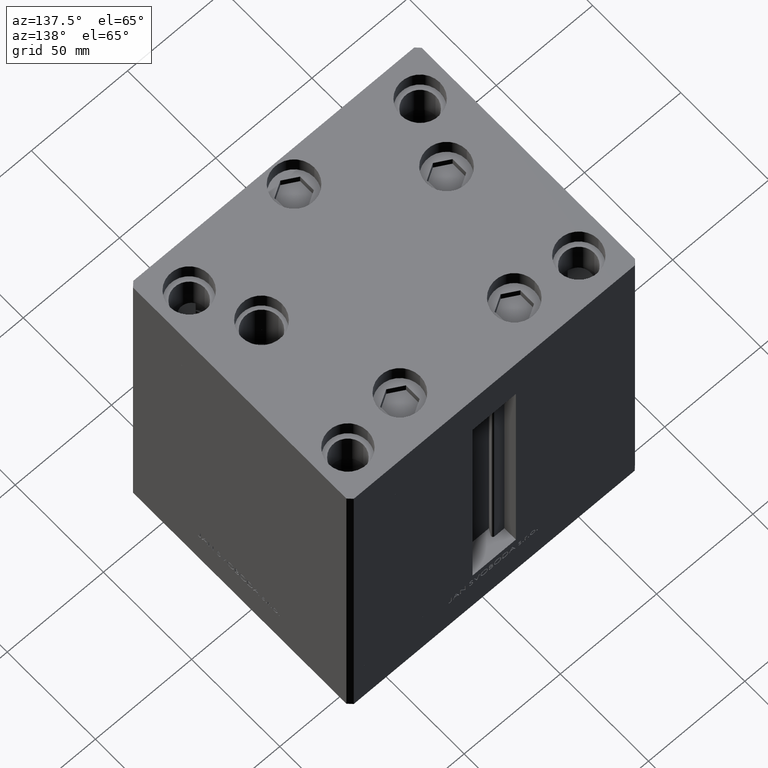
[diagram: clean part render]
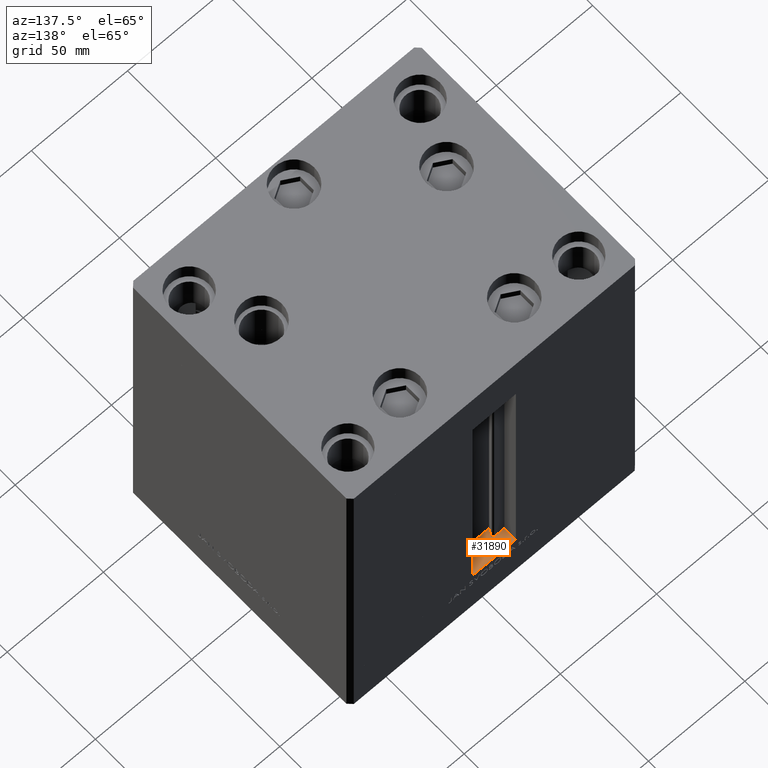
[diagram: same view with one face highlighted and labeled with its STEP entity id]
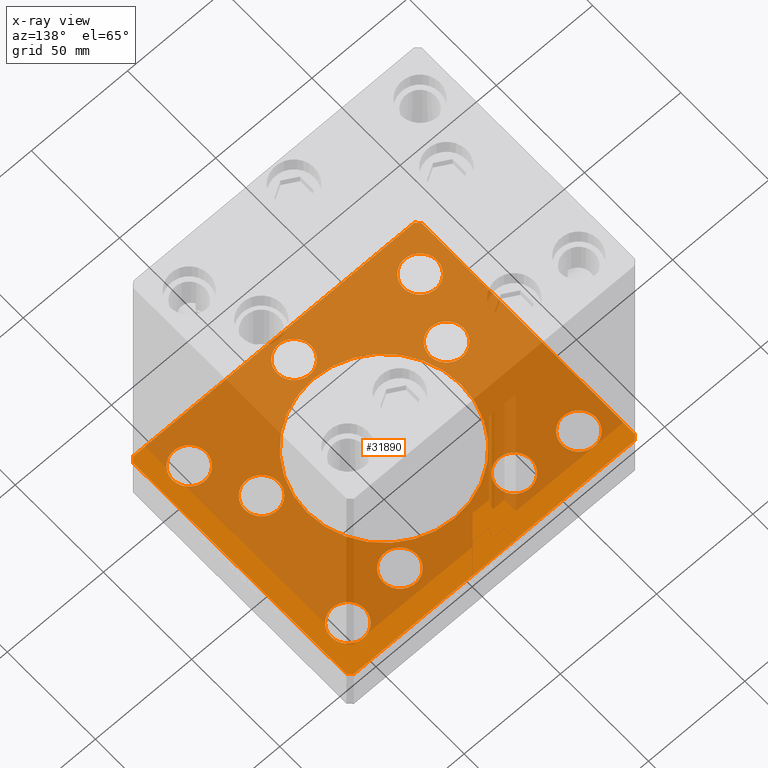
[diagram: x-ray of the same camera — body ghosted, the highlighted face saturated]
A machine part, auxiliary view. The second image highlights one B-rep face of the part: STEP entity #31890.
The next image is the same camera in x-ray: the body ghosted, the highlighted face saturated — about 79% of this face is hidden behind the body in this view.
In plain terms, the highlighted planar face has unit normal (0, 0, -1).
Its self-contained STEP definition (entity closure, byte-faithful):
#251 = CARTESIAN_POINT ( 'NONE',  ( 48.08326112068523628, -16.99999999999998934, -27.00000000000000355 ) ) ;
#385 = VERTEX_POINT ( 'NONE', #28067 ) ;
#493 = DIRECTION ( 'NONE',  ( 1.000000000000000000, 0.000000000000000000, 0.000000000000000000 ) ) ;
#637 = AXIS2_PLACEMENT_3D ( 'NONE', #8070, #16230, #24103 ) ;
#848 = CIRCLE ( 'NONE', #31716, 8.750000000000000000 ) ;
#891 = CARTESIAN_POINT ( 'NONE',  ( 75.00000000000001421, -60.49999999999992184, -27.00000000000000000 ) ) ;
#964 = CARTESIAN_POINT ( 'NONE',  ( 20.98102073172061921, 41.43749999999997868, -27.00000000000000355 ) ) ;
#1025 = ORIENTED_EDGE ( 'NONE', *, *, #29740, .F. ) ;
#1355 = VECTOR ( 'NONE', #8413, 1000.000000000000000 ) ;
#1396 = CIRCLE ( 'NONE', #47680, 8.750000000000000000 ) ;
#1480 = EDGE_CURVE ( 'NONE', #33814, #17199, #48854, .T. ) ;
#1531 = CIRCLE ( 'NONE', #29968, 8.750000000000000000 ) ;
#1645 = AXIS2_PLACEMENT_3D ( 'NONE', #38962, #39716, #12011 ) ;
#1748 = ORIENTED_EDGE ( 'NONE', *, *, #2002, .F. ) ;
#2002 = EDGE_CURVE ( 'NONE', #44869, #29597, #39688, .T. ) ;
#2153 = DIRECTION ( 'NONE',  ( 0.7071067811865489050, 0.7071067811865462405, 0.000000000000000000 ) ) ;
#2391 = CARTESIAN_POINT ( 'NONE',  ( -72.99999999999998579, 62.49999999999997158, -27.00000000000000000 ) ) ;
#2552 = ORIENTED_EDGE ( 'NONE', *, *, #19410, .T. ) ;
#2598 = DIRECTION ( 'NONE',  ( 0.000000000000000000, 0.000000000000000000, 1.000000000000000000 ) ) ;
#2824 = DIRECTION ( 'NONE',  ( 0.000000000000000000, 0.000000000000000000, 1.000000000000000000 ) ) ;
#3745 = VERTEX_POINT ( 'NONE', #28301 ) ;
#3835 = EDGE_CURVE ( 'NONE', #43370, #10633, #32336, .T. ) ;
#4008 = DIRECTION ( 'NONE',  ( 1.000000000000000000, 0.000000000000000000, 0.000000000000000000 ) ) ;
#4299 = DIRECTION ( 'NONE',  ( 0.000000000000000000, 0.000000000000000000, 1.000000000000000000 ) ) ;
#4361 = AXIS2_PLACEMENT_3D ( 'NONE', #42761, #7921, #19636 ) ;
#4426 = CARTESIAN_POINT ( 'NONE',  ( -29.73102073172061921, 41.43749999999997868, -27.00000000000000355 ) ) ;
#4599 = DIRECTION ( 'NONE',  ( -0.000000000000000000, 0.000000000000000000, 1.000000000000000000 ) ) ;
#4624 = FACE_BOUND ( 'NONE', #31174, .T. ) ;
#4805 = EDGE_LOOP ( 'NONE', ( #43990, #12332 ) ) ;
#4903 = AXIS2_PLACEMENT_3D ( 'NONE', #23158, #22669, #19333 ) ;
#5111 = EDGE_LOOP ( 'NONE', ( #33857, #29082 ) ) ;
#5198 = ORIENTED_EDGE ( 'NONE', *, *, #10662, .T. ) ;
#5433 = CARTESIAN_POINT ( 'NONE',  ( -60.00000000000000711, -45.00000000000000000, -27.00000000000000000 ) ) ;
#5494 = DIRECTION ( 'NONE',  ( 0.000000000000000000, 0.000000000000000000, 1.000000000000000000 ) ) ;
#5798 = DIRECTION ( 'NONE',  ( -0.000000000000000000, 0.000000000000000000, 1.000000000000000000 ) ) ;
#6448 = VERTEX_POINT ( 'NONE', #2391 ) ;
#6877 = DIRECTION ( 'NONE',  ( 1.000000000000000000, 0.000000000000000000, 0.000000000000000000 ) ) ;
#7129 = CARTESIAN_POINT ( 'NONE',  ( 8.750000000000000000, -51.00000000000000000, -27.00000000000000355 ) ) ;
#7191 = AXIS2_PLACEMENT_3D ( 'NONE', #5433, #32913, #17153 ) ;
#7221 = AXIS2_PLACEMENT_3D ( 'NONE', #32643, #2598, #25491 ) ;
#7636 = DIRECTION ( 'NONE',  ( 0.000000000000000000, 0.000000000000000000, 1.000000000000000000 ) ) ;
#7921 = DIRECTION ( 'NONE',  ( 0.000000000000000000, 0.000000000000000000, 1.000000000000000000 ) ) ;
#7937 = EDGE_CURVE ( 'NONE', #20030, #385, #25984, .T. ) ;
#8070 = CARTESIAN_POINT ( 'NONE',  ( 29.73102073172061921, 41.43749999999997868, -27.00000000000000355 ) ) ;
#8306 = ORIENTED_EDGE ( 'NONE', *, *, #44883, .F. ) ;
#8324 = ORIENTED_EDGE ( 'NONE', *, *, #14718, .F. ) ;
#8411 = CARTESIAN_POINT ( 'NONE',  ( 60.00000000000000711, -45.00000000000000000, -27.00000000000000000 ) ) ;
#8413 = DIRECTION ( 'NONE',  ( 1.000000000000000000, 7.604267291953125828E-16, 0.000000000000000000 ) ) ;
#8439 = FACE_BOUND ( 'NONE', #47598, .T. ) ;
#9428 = CARTESIAN_POINT ( 'NONE',  ( 39.33326112068523628, -16.99999999999998934, -27.00000000000000355 ) ) ;
#10209 = EDGE_CURVE ( 'NONE', #47777, #6448, #34687, .T. ) ;
#10466 = DIRECTION ( 'NONE',  ( -0.000000000000000000, 0.000000000000000000, 1.000000000000000000 ) ) ;
#10502 = EDGE_CURVE ( 'NONE', #13992, #22990, #19540, .T. ) ;
#10556 = EDGE_CURVE ( 'NONE', #23648, #41513, #848, .T. ) ;
#10633 = VERTEX_POINT ( 'NONE', #7129 ) ;
#10662 = EDGE_CURVE ( 'NONE', #22990, #13992, #48759, .T. ) ;
#10723 = DIRECTION ( 'NONE',  ( 1.000000000000000000, 0.000000000000000000, 0.000000000000000000 ) ) ;
#10727 = CARTESIAN_POINT ( 'NONE',  ( 73.00000000000001421, 62.50000000000000000, -27.00000000000000000 ) ) ;
#10763 = VECTOR ( 'NONE', #33105, 1000.000000000000000 ) ;
#11591 = EDGE_CURVE ( 'NONE', #21279, #47820, #38249, .T. ) ;
#11674 = VERTEX_POINT ( 'NONE', #9428 ) ;
#11718 = AXIS2_PLACEMENT_3D ( 'NONE', #31820, #7636, #43243 ) ;
#11866 = LINE ( 'NONE', #31446, #31493 ) ;
#12011 = DIRECTION ( 'NONE',  ( 1.000000000000000000, 0.000000000000000000, 0.000000000000000000 ) ) ;
#12251 = DIRECTION ( 'NONE',  ( 1.000000000000000000, 0.000000000000000000, 0.000000000000000000 ) ) ;
#12253 = CARTESIAN_POINT ( 'NONE',  ( -68.75000000000000000, -45.00000000000000000, -27.00000000000000000 ) ) ;
#12332 = ORIENTED_EDGE ( 'NONE', *, *, #3835, .T. ) ;
#12354 = EDGE_CURVE ( 'NONE', #14054, #46235, #40730, .T. ) ;
#12992 = EDGE_LOOP ( 'NONE', ( #24163, #2552 ) ) ;
#13264 = FACE_BOUND ( 'NONE', #30830, .T. ) ;
#13691 = EDGE_LOOP ( 'NONE', ( #34631, #37915 ) ) ;
#13853 = VERTEX_POINT ( 'NONE', #35700 ) ;
#13895 = DIRECTION ( 'NONE',  ( 1.000000000000000000, 0.000000000000000000, 0.000000000000000000 ) ) ;
#13992 = VERTEX_POINT ( 'NONE', #14029 ) ;
#14029 = CARTESIAN_POINT ( 'NONE',  ( -56.83326112068523628, -16.99999999999998934, -27.00000000000000355 ) ) ;
#14054 = VERTEX_POINT ( 'NONE', #49621 ) ;
#14278 = FACE_BOUND ( 'NONE', #39355, .T. ) ;
#14283 = EDGE_CURVE ( 'NONE', #3745, #30362, #32858, .T. ) ;
#14399 = VECTOR ( 'NONE', #37570, 1000.000000000000000 ) ;
#14421 = LINE ( 'NONE', #33512, #14399 ) ;
#14445 = ORIENTED_EDGE ( 'NONE', *, *, #33843, .F. ) ;
#14718 = EDGE_CURVE ( 'NONE', #47820, #21279, #18883, .T. ) ;
#15127 = DIRECTION ( 'NONE',  ( 1.000000000000000000, 0.000000000000000000, 0.000000000000000000 ) ) ;
#15241 = CARTESIAN_POINT ( 'NONE',  ( -40.00000000000000000, 4.898587196589413026E-15, -27.00000000000000000 ) ) ;
#15432 = CARTESIAN_POINT ( 'NONE',  ( -75.00000000000000000, -60.50000000000004263, -27.00000000000000000 ) ) ;
#15566 = LINE ( 'NONE', #35665, #1355 ) ;
#15864 = CARTESIAN_POINT ( 'NONE',  ( -73.00000000000001421, -62.50000000000002842, -27.00000000000000000 ) ) ;
#15955 = VERTEX_POINT ( 'NONE', #29357 ) ;
#15981 = DIRECTION ( 'NONE',  ( 0.000000000000000000, -0.000000000000000000, -1.000000000000000000 ) ) ;
#16136 = VECTOR ( 'NONE', #30282, 1000.000000000000114 ) ;
#16230 = DIRECTION ( 'NONE',  ( 0.000000000000000000, 0.000000000000000000, 1.000000000000000000 ) ) ;
#16274 = CARTESIAN_POINT ( 'NONE',  ( 68.75000000000000000, 45.00000000000000000, -27.00000000000000000 ) ) ;
#16311 = AXIS2_PLACEMENT_3D ( 'NONE', #30641, #26092, #15127 ) ;
#16860 = CIRCLE ( 'NONE', #637, 8.750000000000000000 ) ;
#16923 = CARTESIAN_POINT ( 'NONE',  ( -51.25000000000000711, -45.00000000000000000, -27.00000000000000000 ) ) ;
#17153 = DIRECTION ( 'NONE',  ( 1.000000000000000000, 0.000000000000000000, 0.000000000000000000 ) ) ;
#17199 = VERTEX_POINT ( 'NONE', #15864 ) ;
#17380 = DIRECTION ( 'NONE',  ( 0.000000000000000000, -0.000000000000000000, -1.000000000000000000 ) ) ;
#17968 = CARTESIAN_POINT ( 'NONE',  ( 29.73102073172061921, 41.43749999999997868, -27.00000000000000355 ) ) ;
#18193 = DIRECTION ( 'NONE',  ( -0.7071067811865549002, -0.7071067811865401342, 0.000000000000000000 ) ) ;
#18324 = VERTEX_POINT ( 'NONE', #37467 ) ;
#18883 = CIRCLE ( 'NONE', #48901, 40.00000000000000000 ) ;
#19031 = DIRECTION ( 'NONE',  ( 1.000000000000000000, 0.000000000000000000, 0.000000000000000000 ) ) ;
#19333 = DIRECTION ( 'NONE',  ( 1.000000000000000000, 0.000000000000000000, 0.000000000000000000 ) ) ;
#19410 = EDGE_CURVE ( 'NONE', #11674, #30017, #40914, .T. ) ;
#19465 = CARTESIAN_POINT ( 'NONE',  ( 51.25000000000000711, -45.00000000000000000, -27.00000000000000000 ) ) ;
#19540 = CIRCLE ( 'NONE', #40664, 8.750000000000000000 ) ;
#19636 = DIRECTION ( 'NONE',  ( 1.000000000000000000, 0.000000000000000000, 0.000000000000000000 ) ) ;
#19839 = VECTOR ( 'NONE', #2153, 999.9999999999998863 ) ;
#20030 = VERTEX_POINT ( 'NONE', #38436 ) ;
#20152 = FACE_BOUND ( 'NONE', #5111, .T. ) ;
#21084 = EDGE_LOOP ( 'NONE', ( #22245, #1748 ) ) ;
#21279 = VERTEX_POINT ( 'NONE', #15241 ) ;
#21762 = CARTESIAN_POINT ( 'NONE',  ( -72.99999999999998579, 62.49999999999997158, -27.00000000000000000 ) ) ;
#21989 = VECTOR ( 'NONE', #38981, 1000.000000000000000 ) ;
#22009 = CARTESIAN_POINT ( 'NONE',  ( 73.00000000000001421, -62.49999999999991473, -27.00000000000000000 ) ) ;
#22174 = DIRECTION ( 'NONE',  ( -0.000000000000000000, 0.000000000000000000, 1.000000000000000000 ) ) ;
#22245 = ORIENTED_EDGE ( 'NONE', *, *, #36536, .F. ) ;
#22418 = CARTESIAN_POINT ( 'NONE',  ( 60.00000000000000711, -45.00000000000000000, -27.00000000000000000 ) ) ;
#22669 = DIRECTION ( 'NONE',  ( 0.000000000000000000, 0.000000000000000000, 1.000000000000000000 ) ) ;
#22990 = VERTEX_POINT ( 'NONE', #27183 ) ;
#23158 = CARTESIAN_POINT ( 'NONE',  ( -48.08326112068523628, -16.99999999999998934, -27.00000000000000355 ) ) ;
#23392 = CARTESIAN_POINT ( 'NONE',  ( 0.000000000000000000, -51.00000000000000000, -27.00000000000000355 ) ) ;
#23648 = VERTEX_POINT ( 'NONE', #38757 ) ;
#23968 = FACE_BOUND ( 'NONE', #4805, .T. ) ;
#24103 = DIRECTION ( 'NONE',  ( 1.000000000000000000, 0.000000000000000000, 0.000000000000000000 ) ) ;
#24163 = ORIENTED_EDGE ( 'NONE', *, *, #25191, .T. ) ;
#24387 = DIRECTION ( 'NONE',  ( 1.000000000000000000, 0.000000000000000000, 0.000000000000000000 ) ) ;
#24683 = EDGE_CURVE ( 'NONE', #46085, #13853, #37041, .T. ) ;
#25052 = VERTEX_POINT ( 'NONE', #40947 ) ;
#25191 = EDGE_CURVE ( 'NONE', #30017, #11674, #35503, .T. ) ;
#25237 = EDGE_CURVE ( 'NONE', #10633, #43370, #41976, .T. ) ;
#25491 = DIRECTION ( 'NONE',  ( 1.000000000000000000, 0.000000000000000000, 0.000000000000000000 ) ) ;
#25969 = EDGE_CURVE ( 'NONE', #15955, #33814, #14421, .T. ) ;
#25981 = CARTESIAN_POINT ( 'NONE',  ( -8.750000000000000000, -51.00000000000000000, -27.00000000000000355 ) ) ;
#25984 = CIRCLE ( 'NONE', #50322, 8.750000000000000000 ) ;
#25986 = DIRECTION ( 'NONE',  ( 1.000000000000000000, 0.000000000000000000, 0.000000000000000000 ) ) ;
#26092 = DIRECTION ( 'NONE',  ( 0.000000000000000000, -0.000000000000000000, -1.000000000000000000 ) ) ;
#27154 = DIRECTION ( 'NONE',  ( 0.000000000000000000, -0.000000000000000000, -1.000000000000000000 ) ) ;
#27183 = CARTESIAN_POINT ( 'NONE',  ( -39.33326112068523628, -16.99999999999998934, -27.00000000000000355 ) ) ;
#27331 = DIRECTION ( 'NONE',  ( 1.000000000000000000, 0.000000000000000000, 0.000000000000000000 ) ) ;
#27352 = AXIS2_PLACEMENT_3D ( 'NONE', #23392, #4299, #31036 ) ;
#27370 = DIRECTION ( 'NONE',  ( -0.7071067811865524577, 0.7071067811865426878, 0.000000000000000000 ) ) ;
#28067 = CARTESIAN_POINT ( 'NONE',  ( -68.75000000000000000, 45.00000000000000711, -27.00000000000000000 ) ) ;
#28301 = CARTESIAN_POINT ( 'NONE',  ( 75.00000000000001421, -60.49999999999992184, -27.00000000000000000 ) ) ;
#28592 = VERTEX_POINT ( 'NONE', #964 ) ;
#28934 = AXIS2_PLACEMENT_3D ( 'NONE', #37472, #17380, #29322 ) ;
#29041 = EDGE_CURVE ( 'NONE', #46235, #14054, #32019, .T. ) ;
#29082 = ORIENTED_EDGE ( 'NONE', *, *, #12354, .T. ) ;
#29299 = AXIS2_PLACEMENT_3D ( 'NONE', #41224, #10466, #25986 ) ;
#29322 = DIRECTION ( 'NONE',  ( 1.000000000000000000, 0.000000000000000000, 0.000000000000000000 ) ) ;
#29357 = CARTESIAN_POINT ( 'NONE',  ( -75.00000000000000000, 60.50000000000000000, -27.00000000000000000 ) ) ;
#29597 = VERTEX_POINT ( 'NONE', #16923 ) ;
#29730 = CARTESIAN_POINT ( 'NONE',  ( -60.00000000000000000, 45.00000000000000711, -27.00000000000000000 ) ) ;
#29740 = EDGE_CURVE ( 'NONE', #25052, #3745, #33456, .T. ) ;
#29777 = FACE_OUTER_BOUND ( 'NONE', #44013, .T. ) ;
#29968 = AXIS2_PLACEMENT_3D ( 'NONE', #46260, #15981, #34834 ) ;
#30017 = VERTEX_POINT ( 'NONE', #43192 ) ;
#30040 = CIRCLE ( 'NONE', #37336, 8.750000000000000000 ) ;
#30282 = DIRECTION ( 'NONE',  ( 0.7071067811865474617, -0.7071067811865474617, 0.000000000000000000 ) ) ;
#30362 = VERTEX_POINT ( 'NONE', #46446 ) ;
#30641 = CARTESIAN_POINT ( 'NONE',  ( 0.000000000000000000, 0.000000000000000000, -27.00000000000000000 ) ) ;
#30830 = EDGE_LOOP ( 'NONE', ( #31135, #40338 ) ) ;
#30905 = EDGE_CURVE ( 'NONE', #13853, #46085, #34957, .T. ) ;
#30989 = CARTESIAN_POINT ( 'NONE',  ( 0.000000000000000000, 0.000000000000000000, -27.00000000000000000 ) ) ;
#31036 = DIRECTION ( 'NONE',  ( 1.000000000000000000, 0.000000000000000000, 0.000000000000000000 ) ) ;
#31135 = ORIENTED_EDGE ( 'NONE', *, *, #10556, .T. ) ;
#31174 = EDGE_LOOP ( 'NONE', ( #34682, #36880 ) ) ;
#31446 = CARTESIAN_POINT ( 'NONE',  ( 75.00000000000001421, 60.50000000000002842, -27.00000000000000000 ) ) ;
#31493 = VECTOR ( 'NONE', #27370, 1000.000000000000000 ) ;
#31716 = AXIS2_PLACEMENT_3D ( 'NONE', #22418, #22174, #10723 ) ;
#31820 = CARTESIAN_POINT ( 'NONE',  ( -29.73102073172061921, 41.43749999999997868, -27.00000000000000355 ) ) ;
#31867 = FACE_BOUND ( 'NONE', #13691, .T. ) ;
#31890 = ADVANCED_FACE ( 'NONE', ( #43286, #8439, #23968, #39470, #4624, #20152, #31867, #47355, #29777, #14278, #13264 ), #45284, .F. ) ;
#31921 = DIRECTION ( 'NONE',  ( 0.000000000000000000, 0.000000000000000000, 1.000000000000000000 ) ) ;
#32019 = CIRCLE ( 'NONE', #11718, 8.750000000000000000 ) ;
#32336 = CIRCLE ( 'NONE', #7221, 8.750000000000000000 ) ;
#32341 = ORIENTED_EDGE ( 'NONE', *, *, #1480, .F. ) ;
#32643 = CARTESIAN_POINT ( 'NONE',  ( 0.000000000000000000, -51.00000000000000000, -27.00000000000000355 ) ) ;
#32858 = LINE ( 'NONE', #891, #10763 ) ;
#32913 = DIRECTION ( 'NONE',  ( 0.000000000000000000, -0.000000000000000000, -1.000000000000000000 ) ) ;
#33063 = CIRCLE ( 'NONE', #35507, 8.750000000000000000 ) ;
#33105 = DIRECTION ( 'NONE',  ( 0.000000000000000000, 1.000000000000000000, 0.000000000000000000 ) ) ;
#33187 = EDGE_CURVE ( 'NONE', #28592, #18324, #16860, .T. ) ;
#33456 = LINE ( 'NONE', #22009, #19839 ) ;
#33512 = CARTESIAN_POINT ( 'NONE',  ( -75.00000000000000000, 60.50000000000000000, -27.00000000000000000 ) ) ;
#33573 = DIRECTION ( 'NONE',  ( -0.000000000000000000, 0.000000000000000000, 1.000000000000000000 ) ) ;
#33814 = VERTEX_POINT ( 'NONE', #15432 ) ;
#33843 = EDGE_CURVE ( 'NONE', #30362, #47777, #11866, .T. ) ;
#33857 = ORIENTED_EDGE ( 'NONE', *, *, #29041, .T. ) ;
#34378 = CARTESIAN_POINT ( 'NONE',  ( -48.08326112068523628, -16.99999999999998934, -27.00000000000000355 ) ) ;
#34631 = ORIENTED_EDGE ( 'NONE', *, *, #24683, .F. ) ;
#34682 = ORIENTED_EDGE ( 'NONE', *, *, #40629, .T. ) ;
#34687 = LINE ( 'NONE', #50170, #21989 ) ;
#34834 = DIRECTION ( 'NONE',  ( 1.000000000000000000, 0.000000000000000000, 0.000000000000000000 ) ) ;
#34957 = CIRCLE ( 'NONE', #1645, 8.750000000000007105 ) ;
#35503 = CIRCLE ( 'NONE', #39551, 8.750000000000000000 ) ;
#35507 = AXIS2_PLACEMENT_3D ( 'NONE', #17968, #5494, #13895 ) ;
#35665 = CARTESIAN_POINT ( 'NONE',  ( -73.00000000000001421, -62.50000000000002842, -27.00000000000000000 ) ) ;
#35700 = CARTESIAN_POINT ( 'NONE',  ( 51.24999999999999289, 45.00000000000000000, -27.00000000000000000 ) ) ;
#36088 = ORIENTED_EDGE ( 'NONE', *, *, #14283, .F. ) ;
#36536 = EDGE_CURVE ( 'NONE', #29597, #44869, #1531, .T. ) ;
#36600 = CARTESIAN_POINT ( 'NONE',  ( -60.00000000000000000, 45.00000000000000711, -27.00000000000000000 ) ) ;
#36880 = ORIENTED_EDGE ( 'NONE', *, *, #33187, .T. ) ;
#37041 = CIRCLE ( 'NONE', #28934, 8.750000000000007105 ) ;
#37336 = AXIS2_PLACEMENT_3D ( 'NONE', #8411, #4599, #12251 ) ;
#37420 = CARTESIAN_POINT ( 'NONE',  ( -75.00000000000000000, -60.50000000000004263, -27.00000000000000000 ) ) ;
#37467 = CARTESIAN_POINT ( 'NONE',  ( 38.48102073172061921, 41.43749999999997868, -27.00000000000000355 ) ) ;
#37472 = CARTESIAN_POINT ( 'NONE',  ( 60.00000000000000000, 45.00000000000000000, -27.00000000000000000 ) ) ;
#37498 = ORIENTED_EDGE ( 'NONE', *, *, #25969, .F. ) ;
#37570 = DIRECTION ( 'NONE',  ( 0.000000000000000000, -1.000000000000000000, 0.000000000000000000 ) ) ;
#37615 = ORIENTED_EDGE ( 'NONE', *, *, #7937, .T. ) ;
#37888 = EDGE_CURVE ( 'NONE', #6448, #15955, #38027, .T. ) ;
#37915 = ORIENTED_EDGE ( 'NONE', *, *, #30905, .F. ) ;
#38027 = LINE ( 'NONE', #21762, #43793 ) ;
#38249 = CIRCLE ( 'NONE', #16311, 40.00000000000000000 ) ;
#38356 = ORIENTED_EDGE ( 'NONE', *, *, #45410, .T. ) ;
#38436 = CARTESIAN_POINT ( 'NONE',  ( -51.25000000000000000, 45.00000000000000711, -27.00000000000000000 ) ) ;
#38635 = EDGE_LOOP ( 'NONE', ( #8324, #44280 ) ) ;
#38757 = CARTESIAN_POINT ( 'NONE',  ( 68.75000000000000000, -45.00000000000000000, -27.00000000000000000 ) ) ;
#38919 = EDGE_CURVE ( 'NONE', #41513, #23648, #30040, .T. ) ;
#38962 = CARTESIAN_POINT ( 'NONE',  ( 60.00000000000000000, 45.00000000000000000, -27.00000000000000000 ) ) ;
#38981 = DIRECTION ( 'NONE',  ( -1.000000000000000000, -1.901066822988281950E-16, 0.000000000000000000 ) ) ;
#39355 = EDGE_LOOP ( 'NONE', ( #37615, #38356 ) ) ;
#39470 = FACE_BOUND ( 'NONE', #12992, .T. ) ;
#39551 = AXIS2_PLACEMENT_3D ( 'NONE', #251, #47032, #493 ) ;
#39688 = CIRCLE ( 'NONE', #7191, 8.750000000000000000 ) ;
#39716 = DIRECTION ( 'NONE',  ( 0.000000000000000000, -0.000000000000000000, -1.000000000000000000 ) ) ;
#40338 = ORIENTED_EDGE ( 'NONE', *, *, #38919, .T. ) ;
#40629 = EDGE_CURVE ( 'NONE', #18324, #28592, #33063, .T. ) ;
#40664 = AXIS2_PLACEMENT_3D ( 'NONE', #34378, #2824, #6877 ) ;
#40730 = CIRCLE ( 'NONE', #48031, 8.750000000000000000 ) ;
#40914 = CIRCLE ( 'NONE', #4361, 8.750000000000000000 ) ;
#40947 = CARTESIAN_POINT ( 'NONE',  ( 73.00000000000001421, -62.49999999999991473, -27.00000000000000000 ) ) ;
#41224 = CARTESIAN_POINT ( 'NONE',  ( 0.000000000000000000, 0.000000000000000000, -27.00000000000000000 ) ) ;
#41513 = VERTEX_POINT ( 'NONE', #19465 ) ;
#41976 = CIRCLE ( 'NONE', #27352, 8.750000000000000000 ) ;
#42473 = ORIENTED_EDGE ( 'NONE', *, *, #10502, .T. ) ;
#42761 = CARTESIAN_POINT ( 'NONE',  ( 48.08326112068523628, -16.99999999999998934, -27.00000000000000355 ) ) ;
#43192 = CARTESIAN_POINT ( 'NONE',  ( 56.83326112068523628, -16.99999999999998934, -27.00000000000000355 ) ) ;
#43243 = DIRECTION ( 'NONE',  ( 1.000000000000000000, 0.000000000000000000, 0.000000000000000000 ) ) ;
#43286 = FACE_BOUND ( 'NONE', #38635, .T. ) ;
#43370 = VERTEX_POINT ( 'NONE', #25981 ) ;
#43793 = VECTOR ( 'NONE', #18193, 1000.000000000000000 ) ;
#43990 = ORIENTED_EDGE ( 'NONE', *, *, #25237, .T. ) ;
#44013 = EDGE_LOOP ( 'NONE', ( #32341, #37498, #44724, #45473, #14445, #36088, #1025, #8306 ) ) ;
#44280 = ORIENTED_EDGE ( 'NONE', *, *, #11591, .F. ) ;
#44724 = ORIENTED_EDGE ( 'NONE', *, *, #37888, .F. ) ;
#44869 = VERTEX_POINT ( 'NONE', #12253 ) ;
#44883 = EDGE_CURVE ( 'NONE', #17199, #25052, #15566, .T. ) ;
#45284 = PLANE ( 'NONE',  #29299 ) ;
#45410 = EDGE_CURVE ( 'NONE', #385, #20030, #1396, .T. ) ;
#45473 = ORIENTED_EDGE ( 'NONE', *, *, #10209, .F. ) ;
#46085 = VERTEX_POINT ( 'NONE', #16274 ) ;
#46235 = VERTEX_POINT ( 'NONE', #49038 ) ;
#46260 = CARTESIAN_POINT ( 'NONE',  ( -60.00000000000000711, -45.00000000000000000, -27.00000000000000000 ) ) ;
#46446 = CARTESIAN_POINT ( 'NONE',  ( 75.00000000000001421, 60.50000000000002842, -27.00000000000000000 ) ) ;
#47032 = DIRECTION ( 'NONE',  ( 0.000000000000000000, 0.000000000000000000, 1.000000000000000000 ) ) ;
#47051 = CARTESIAN_POINT ( 'NONE',  ( 40.00000000000000000, 0.000000000000000000, -27.00000000000000000 ) ) ;
#47355 = FACE_BOUND ( 'NONE', #21084, .T. ) ;
#47598 = EDGE_LOOP ( 'NONE', ( #5198, #42473 ) ) ;
#47680 = AXIS2_PLACEMENT_3D ( 'NONE', #36600, #5798, #24387 ) ;
#47777 = VERTEX_POINT ( 'NONE', #10727 ) ;
#47820 = VERTEX_POINT ( 'NONE', #47051 ) ;
#48031 = AXIS2_PLACEMENT_3D ( 'NONE', #4426, #31921, #27331 ) ;
#48759 = CIRCLE ( 'NONE', #4903, 8.750000000000000000 ) ;
#48854 = LINE ( 'NONE', #37420, #16136 ) ;
#48901 = AXIS2_PLACEMENT_3D ( 'NONE', #30989, #27154, #4008 ) ;
#49038 = CARTESIAN_POINT ( 'NONE',  ( -20.98102073172061921, 41.43749999999997868, -27.00000000000000355 ) ) ;
#49621 = CARTESIAN_POINT ( 'NONE',  ( -38.48102073172061921, 41.43749999999997868, -27.00000000000000355 ) ) ;
#50170 = CARTESIAN_POINT ( 'NONE',  ( 73.00000000000001421, 62.50000000000000000, -27.00000000000000000 ) ) ;
#50322 = AXIS2_PLACEMENT_3D ( 'NONE', #29730, #33573, #19031 ) ;